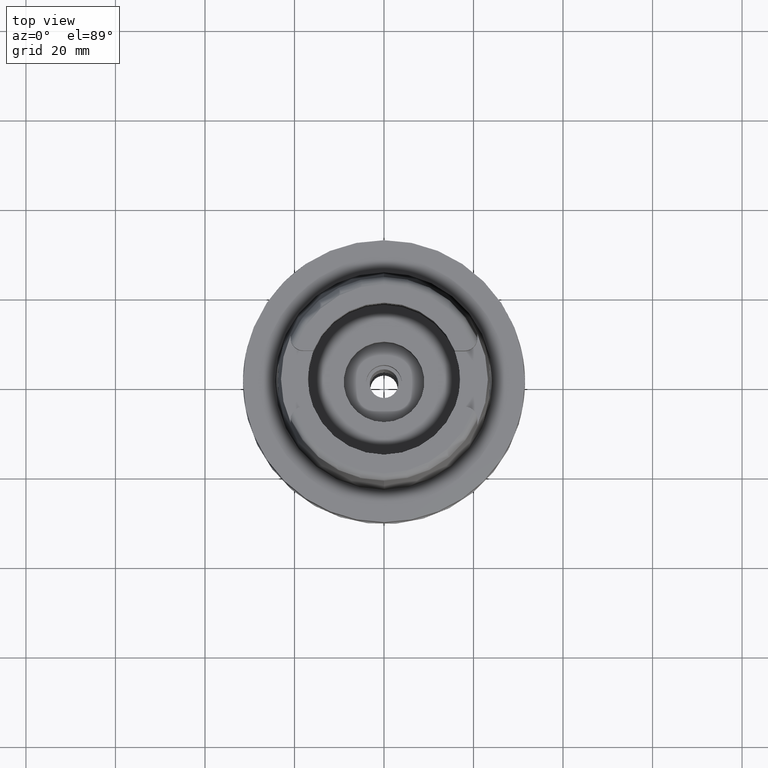
[diagram: clean part render]
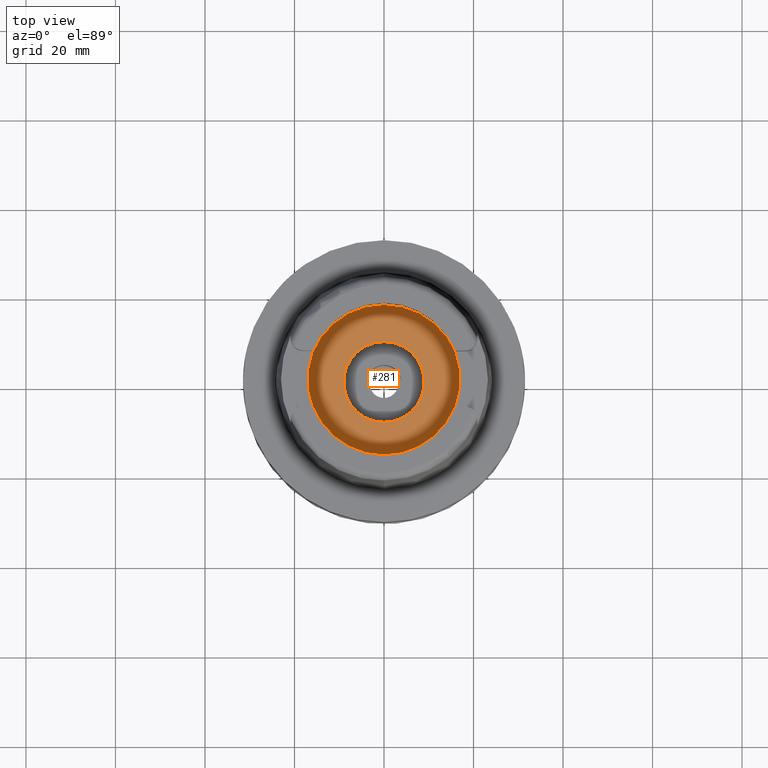
[diagram: same view with one face highlighted and labeled with its STEP entity id]
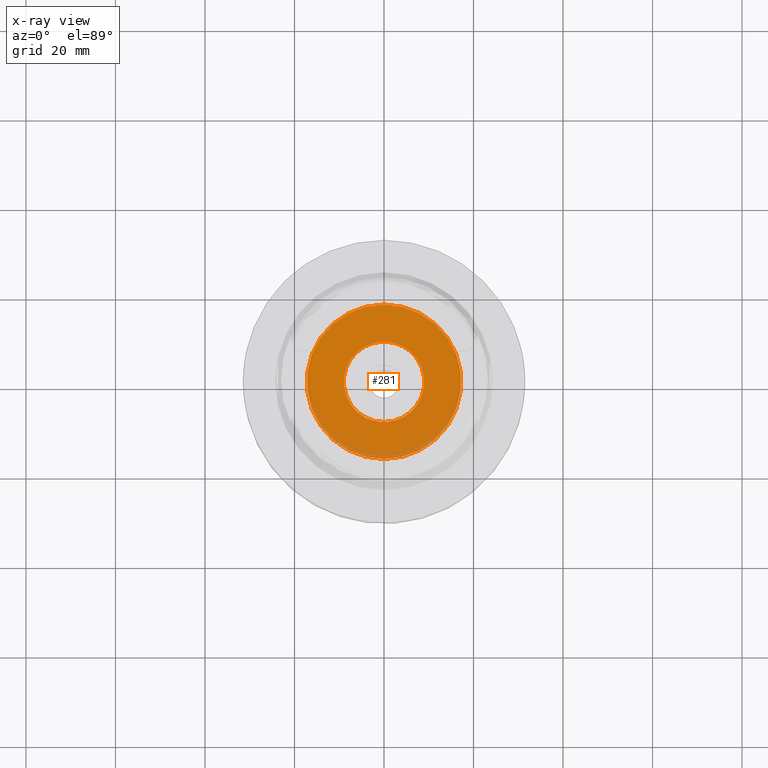
[diagram: x-ray of the same camera — body ghosted, the highlighted face saturated]
A machine part, top view. The second image highlights one B-rep face of the part: STEP entity #281.
The next image is the same camera in x-ray: the body ghosted, the highlighted face saturated — about 6% of this face is hidden behind the body in this view.
In plain terms, the highlighted planar face has unit normal (0, 0, 1).
Its self-contained STEP definition (entity closure, byte-faithful):
#77 = DIRECTION ( 'NONE',  ( 0.0000000000000000000, 0.0000000000000000000, 1.000000000000000000 ) ) ;
#89 = AXIS2_PLACEMENT_3D ( 'NONE', #1510, #2271, #3606 ) ;
#141 = CARTESIAN_POINT ( 'NONE',  ( 0.0000000000000000000, -9.000000000000000000, -9.950000000000001066 ) ) ;
#249 = ORIENTED_EDGE ( 'NONE', *, *, #2328, .F. ) ;
#281 = ADVANCED_FACE ( 'NONE', ( #2189, #4686 ), #4264, .T. ) ;
#427 = AXIS2_PLACEMENT_3D ( 'NONE', #890, #77, #480 ) ;
#480 = DIRECTION ( 'NONE',  ( 1.000000000000000000, 0.0000000000000000000, 0.0000000000000000000 ) ) ;
#611 = AXIS2_PLACEMENT_3D ( 'NONE', #5381, #2868, #2459 ) ;
#636 = DIRECTION ( 'NONE',  ( 0.0000000000000000000, 0.0000000000000000000, -1.000000000000000000 ) ) ;
#890 = CARTESIAN_POINT ( 'NONE',  ( 0.0000000000000000000, 0.0000000000000000000, -9.950000000000001066 ) ) ;
#1116 = ORIENTED_EDGE ( 'NONE', *, *, #1858, .F. ) ;
#1165 = EDGE_CURVE ( 'NONE', #1820, #4291, #2896, .T. ) ;
#1194 = CARTESIAN_POINT ( 'NONE',  ( 0.0000000000000000000, 0.0000000000000000000, -9.950000000000001066 ) ) ;
#1410 = ORIENTED_EDGE ( 'NONE', *, *, #1165, .F. ) ;
#1510 = CARTESIAN_POINT ( 'NONE',  ( 0.0000000000000000000, 0.0000000000000000000, -9.950000000000001066 ) ) ;
#1798 = CIRCLE ( 'NONE', #4896, 9.000000000000000000 ) ;
#1820 = VERTEX_POINT ( 'NONE', #1960 ) ;
#1858 = EDGE_CURVE ( 'NONE', #4007, #5320, #2279, .T. ) ;
#1960 = CARTESIAN_POINT ( 'NONE',  ( 0.0000000000000000000, 9.000000000000000000, -9.950000000000001066 ) ) ;
#2104 = AXIS2_PLACEMENT_3D ( 'NONE', #4424, #636, #4363 ) ;
#2189 = FACE_OUTER_BOUND ( 'NONE', #3335, .T. ) ;
#2264 = DIRECTION ( 'NONE',  ( 0.0000000000000000000, -1.000000000000000000, 0.0000000000000000000 ) ) ;
#2271 = DIRECTION ( 'NONE',  ( 0.0000000000000000000, 0.0000000000000000000, 1.000000000000000000 ) ) ;
#2279 = CIRCLE ( 'NONE', #611, 17.25000000000000000 ) ;
#2328 = EDGE_CURVE ( 'NONE', #5320, #4007, #3518, .T. ) ;
#2459 = DIRECTION ( 'NONE',  ( 0.0000000000000000000, 1.000000000000000000, 0.0000000000000000000 ) ) ;
#2868 = DIRECTION ( 'NONE',  ( 0.0000000000000000000, 0.0000000000000000000, -1.000000000000000000 ) ) ;
#2896 = CIRCLE ( 'NONE', #89, 9.000000000000000000 ) ;
#3335 = EDGE_LOOP ( 'NONE', ( #1116, #249 ) ) ;
#3506 = EDGE_CURVE ( 'NONE', #4291, #1820, #1798, .T. ) ;
#3518 = CIRCLE ( 'NONE', #2104, 17.25000000000000000 ) ;
#3568 = DIRECTION ( 'NONE',  ( 0.0000000000000000000, 0.0000000000000000000, 1.000000000000000000 ) ) ;
#3606 = DIRECTION ( 'NONE',  ( 0.0000000000000000000, 1.000000000000000000, 0.0000000000000000000 ) ) ;
#3738 = ORIENTED_EDGE ( 'NONE', *, *, #3506, .F. ) ;
#4007 = VERTEX_POINT ( 'NONE', #4534 ) ;
#4101 = EDGE_LOOP ( 'NONE', ( #1410, #3738 ) ) ;
#4264 = PLANE ( 'NONE',  #427 ) ;
#4291 = VERTEX_POINT ( 'NONE', #141 ) ;
#4329 = CARTESIAN_POINT ( 'NONE',  ( 0.0000000000000000000, -17.25000000000000000, -9.950000000000001066 ) ) ;
#4363 = DIRECTION ( 'NONE',  ( 0.0000000000000000000, -1.000000000000000000, 0.0000000000000000000 ) ) ;
#4424 = CARTESIAN_POINT ( 'NONE',  ( 0.0000000000000000000, 0.0000000000000000000, -9.950000000000001066 ) ) ;
#4534 = CARTESIAN_POINT ( 'NONE',  ( 0.0000000000000000000, 17.25000000000000000, -9.950000000000001066 ) ) ;
#4686 = FACE_BOUND ( 'NONE', #4101, .T. ) ;
#4896 = AXIS2_PLACEMENT_3D ( 'NONE', #1194, #3568, #2264 ) ;
#5320 = VERTEX_POINT ( 'NONE', #4329 ) ;
#5381 = CARTESIAN_POINT ( 'NONE',  ( 0.0000000000000000000, 0.0000000000000000000, -9.950000000000001066 ) ) ;